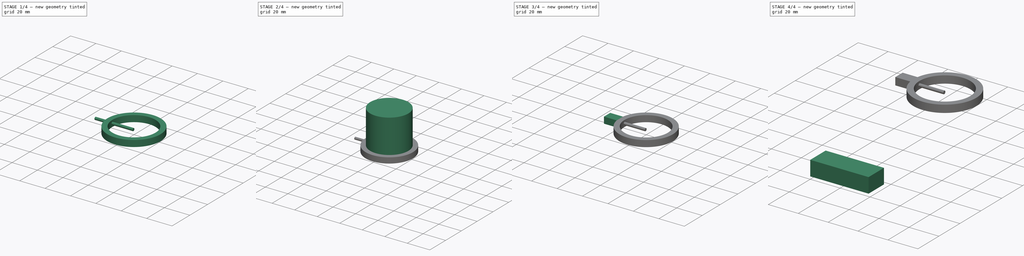
[diagram: build sequence overview — one tinted view per stage of 4, left to right]
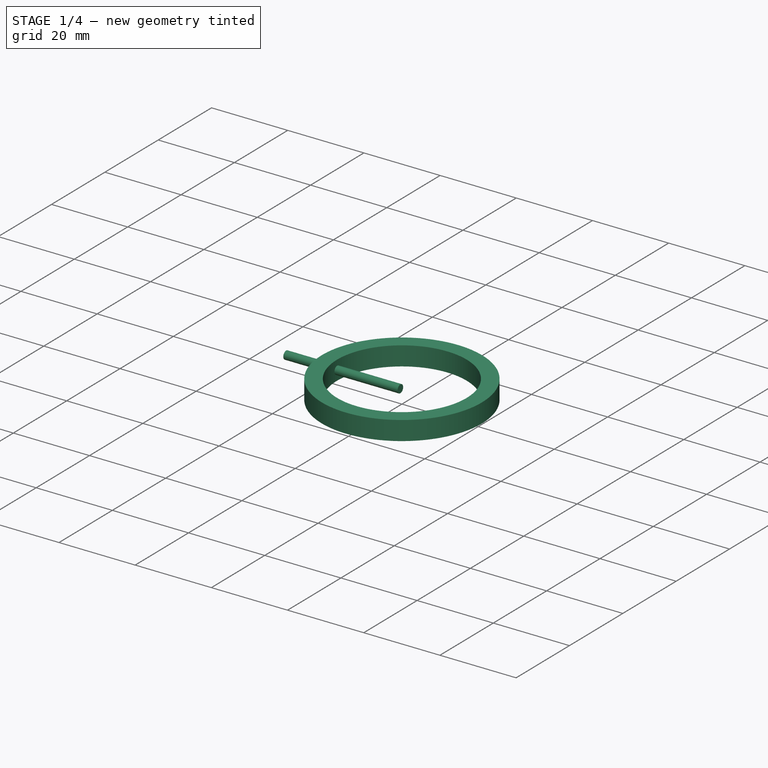
[diagram: stage 1 of 4 — iso view after this stage's code; geometry added in this stage tinted green]
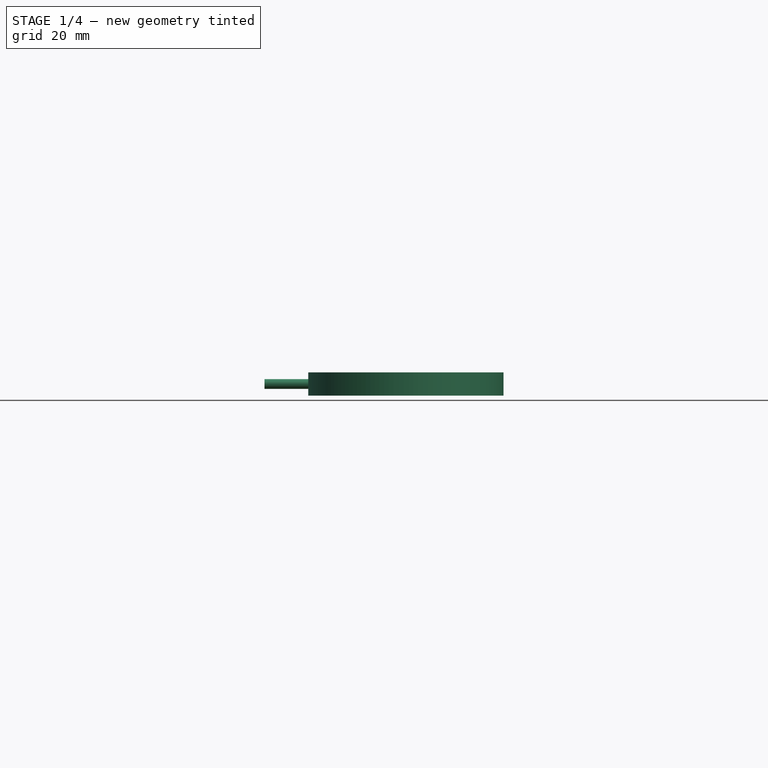
[diagram: stage 1 of 4 — front view after this stage's code; geometry added in this stage tinted green]
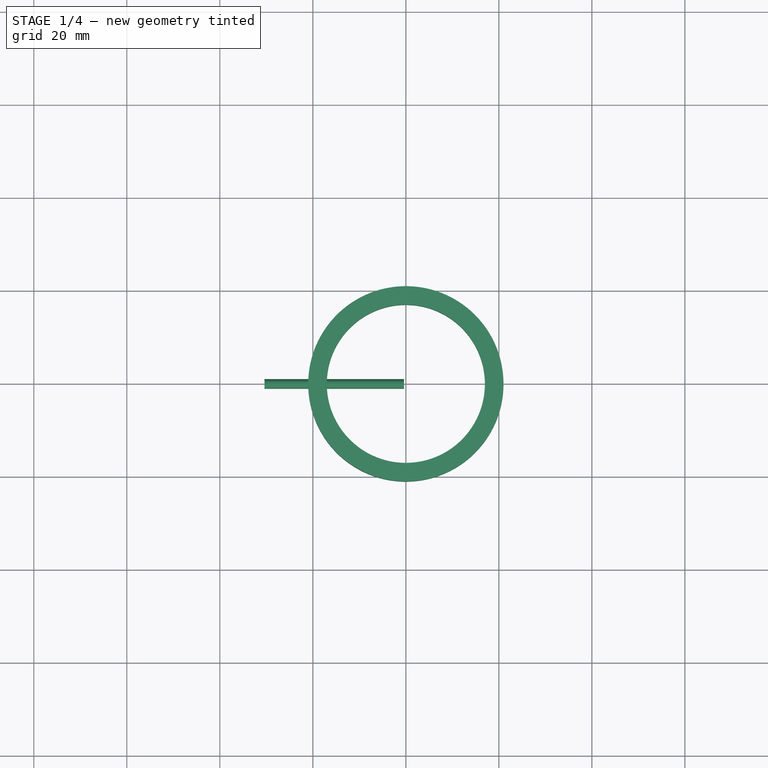
[diagram: stage 1 of 4 — top view after this stage's code; geometry added in this stage tinted green]
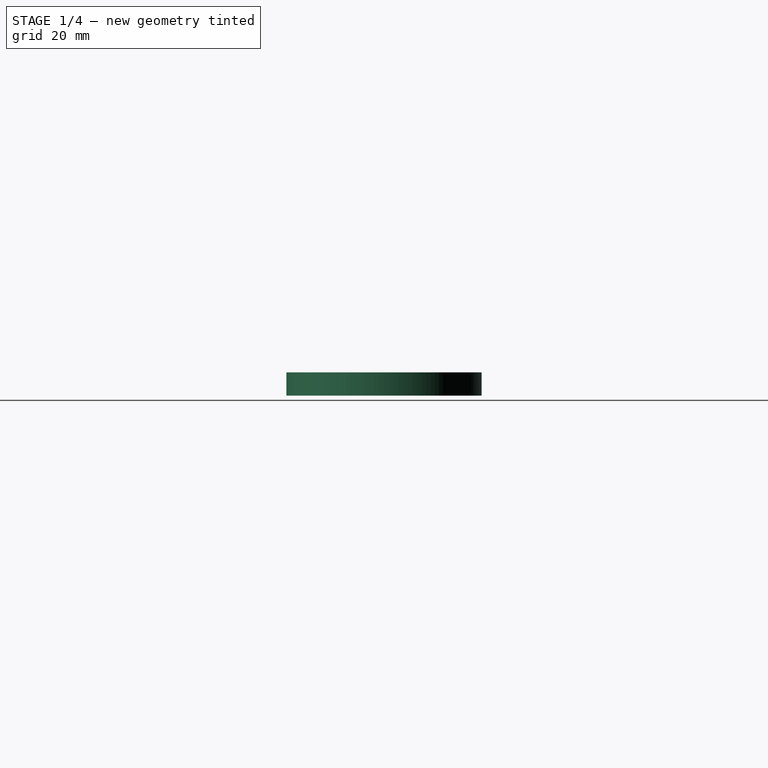
[diagram: stage 1 of 4 — right view after this stage's code; geometry added in this stage tinted green]
FCSTD DOCUMENT  (FreeCAD 0.19R24291 (Git))
Label: azimut_mount
License: All rights reserved
LicenseURL: http://en.wikipedia.org/wiki/All_rights_reserved
objects: Sketcher::SketchObject×10, Part::Extrusion×9, Part::Cut×3, PartDesign::ShapeBinder×3, Part::FeaturePython×1, App::Part×1, PartDesign::Body×1
note: 27 computed .brp shape members not serialized (recipe doc carries the construction recipe); baked Part::Feature solids carry a one-line shape summary decoded from their .brp

FEATURE [Part::FeaturePython] involutegear  # WARN: FeaturePython — macro-defined, semantics opaque (R4)
  AttacherType = Attacher::AttachEngine3D
  Placement = pos=(0,0,30) rot=(0,0,1;0rad)
  backlash = 0
  beta = 0
  clearance = 0.25
  da = 82
  df = 77.5
  double_helix = false
  dw = 80
  head = 0
  height = 5
  module = 1
  numpoints = 6
  pressure_angle = 20
  properties_from_tool = false
  reversed_backlash = false
  shift = 0
  simple = false
  teeth = 80
  transverse_pitch = 3.14159
  undercut = false
  version = 0.0.3
FEATURE [App::Part] Part
  Group = -> [involutegear]
  Origin = -> Origin001
FEATURE [Sketcher::SketchObject] Sketch003
  FullyConstrained = true
  MapMode = 5
  Placement = pos=(0,0,30) rot=(1,0,0;3.14159rad)
  Support = -> [involutegear]
  sketch-geometry (2):
    g0: Circle CenterX=0 CenterY=0 CenterZ=0 NormalX=0 NormalY=0 NormalZ=1 AngleXU=0 Radius=17
    g1: Circle CenterX=0 CenterY=0 CenterZ=0 NormalX=0 NormalY=0 NormalZ=1 AngleXU=0 Radius=21
  constraints (4):
    c: Radius(g0) = 17
    c: Coincident(g0,g-1)
    c: Coincident(g1,g0)
    c: Radius(g1) = 21
FEATURE [Part::Extrusion] Extrude003
  Base = -> Sketch003
  Dir = (0,0,-1)
  DirMode = 2
  FaceMakerClass = Part::FaceMakerBullseye
  LengthFwd = 5
  LengthRev = 0
  Solid = true
  Symmetric = false
FEATURE [Part::Extrusion] Extrude008
  Base = -> Sketch007
  Dir = (-1,0,0)
  DirMode = 2
  FaceMakerClass = Part::FaceMakerBullseye
  LengthFwd = 30
  LengthRev = 0
  Reversed = true
  Solid = true
  Symmetric = false
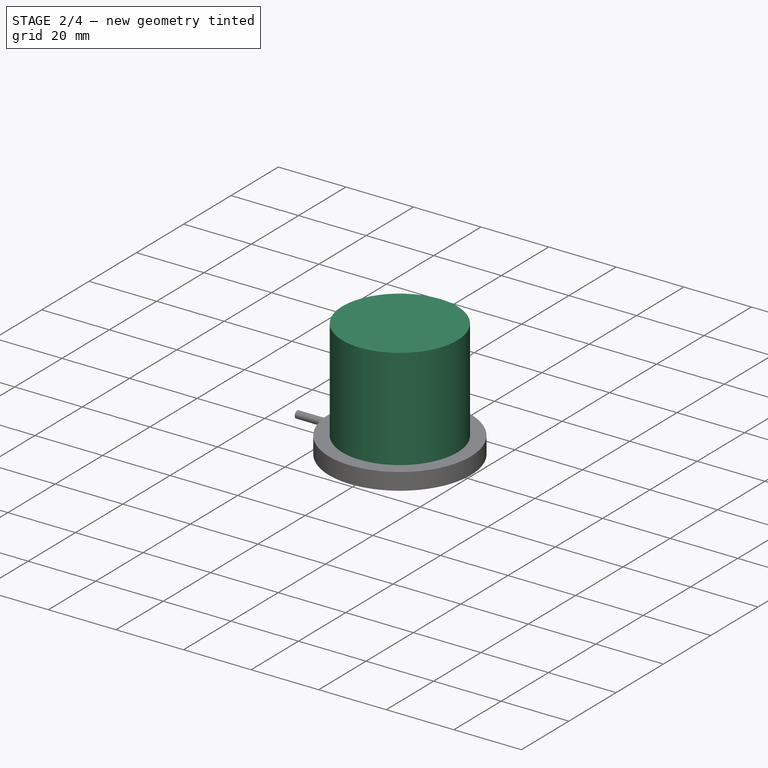
[diagram: stage 2 of 4 — iso view after this stage's code; geometry added in this stage tinted green]
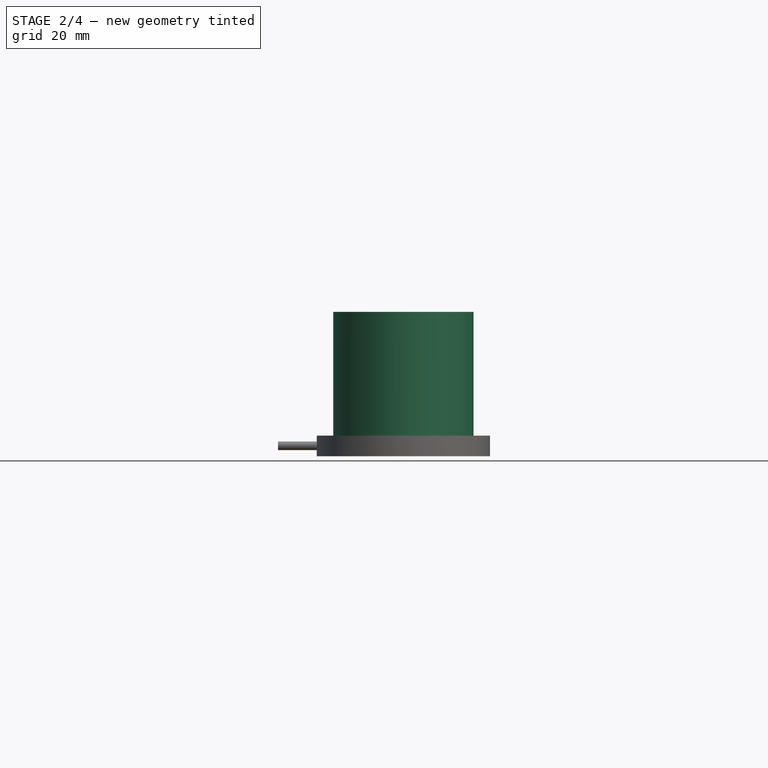
[diagram: stage 2 of 4 — front view after this stage's code; geometry added in this stage tinted green]
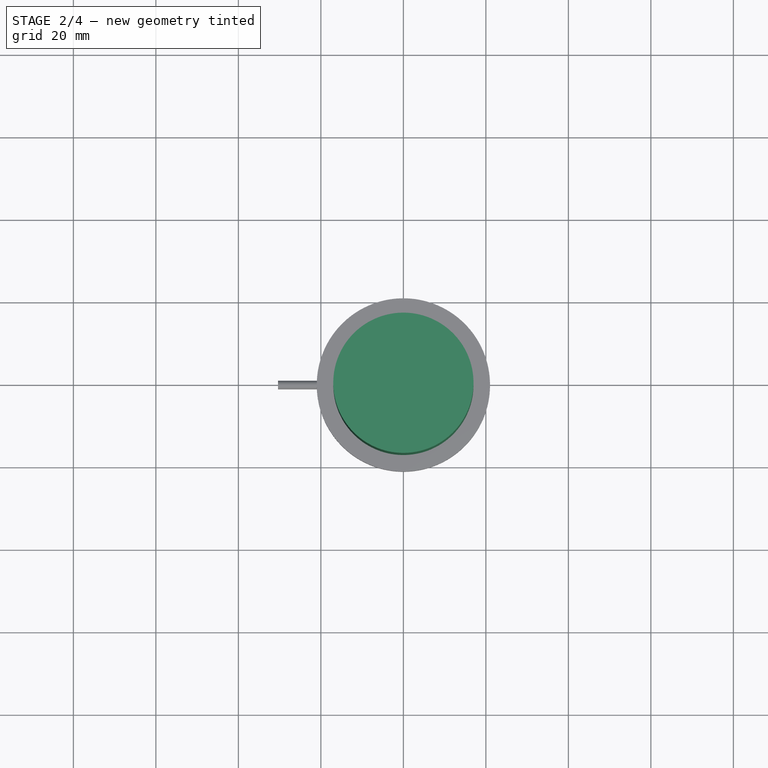
[diagram: stage 2 of 4 — top view after this stage's code; geometry added in this stage tinted green]
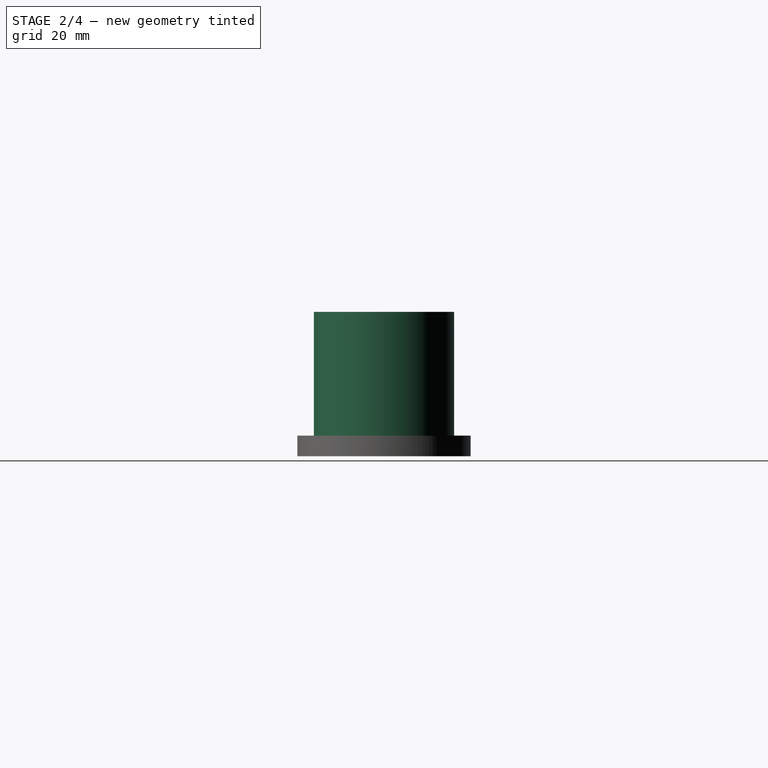
[diagram: stage 2 of 4 — right view after this stage's code; geometry added in this stage tinted green]
FEATURE [Sketcher::SketchObject] Sketch004
  FullyConstrained = true
  MapMode = 2
  Placement = pos=(0,0,30) rot=(0,0,1;0rad)
  Support = -> [involutegear]
  sketch-geometry (1):
    g0: Circle CenterX=0 CenterY=0 CenterZ=0 NormalX=0 NormalY=0 NormalZ=1 AngleXU=0 Radius=17
  constraints (2):
    c: Coincident(g0,g-1)
    c: Radius(g0) = 17
FEATURE [Part::Extrusion] Extrude004
  Base = -> Sketch004
  Dir = (0,0,1)
  DirMode = 2
  FaceMakerClass = Part::FaceMakerBullseye
  LengthFwd = 30
  LengthRev = 0
  Solid = true
  Symmetric = false
FEATURE [Part::Extrusion] Extrude009
  Base = -> Sketch007
  Dir = (-1,0,0)
  DirMode = 2
  FaceMakerClass = Part::FaceMakerBullseye
  LengthFwd = 30
  LengthRev = 0
  Reversed = true
  Solid = true
  Symmetric = false
FEATURE [Part::Cut] Cut002
  Base = -> Extrude003
  Tool = -> Extrude008
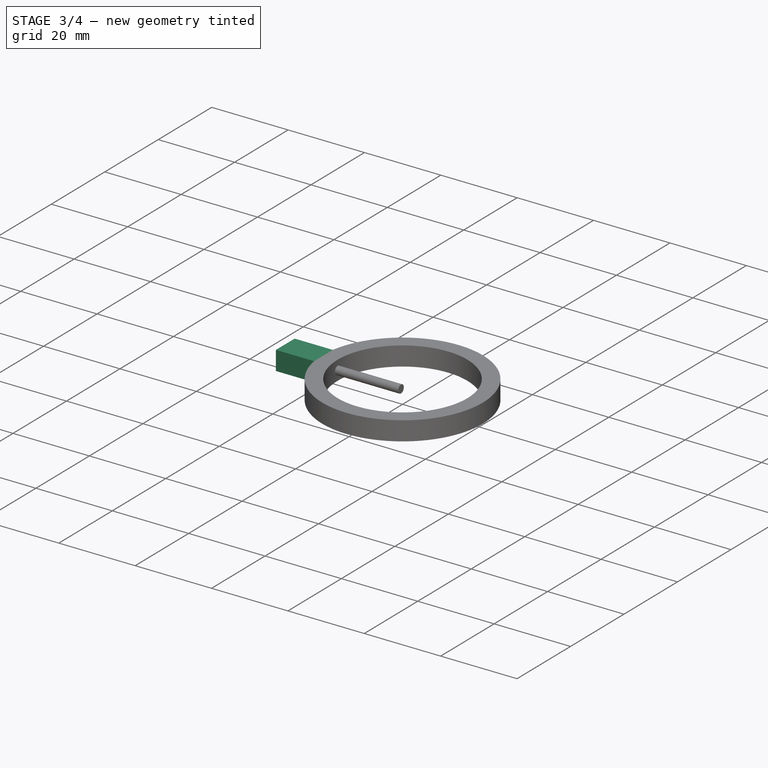
[diagram: stage 3 of 4 — iso view after this stage's code; geometry added in this stage tinted green]
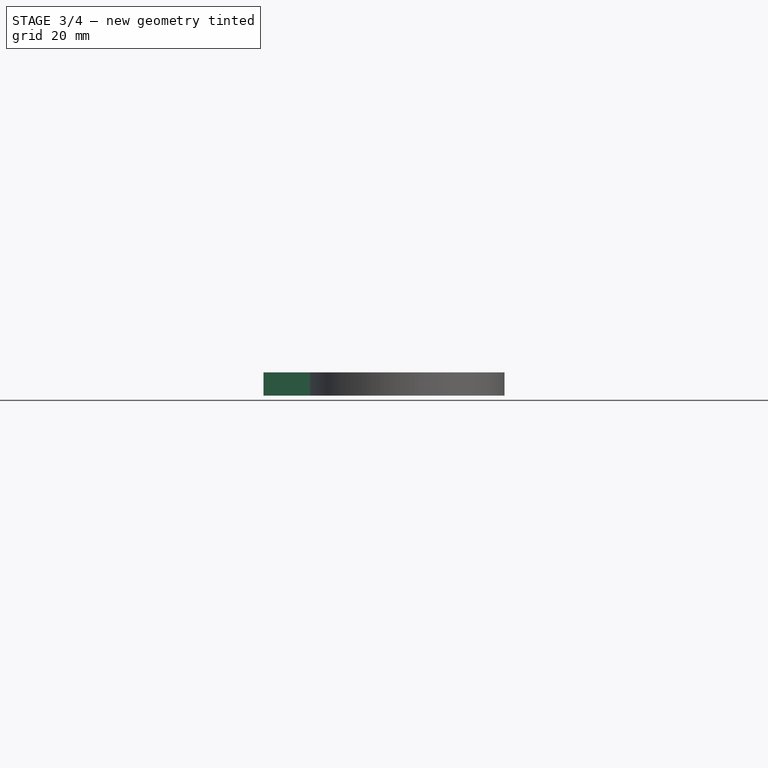
[diagram: stage 3 of 4 — front view after this stage's code; geometry added in this stage tinted green]
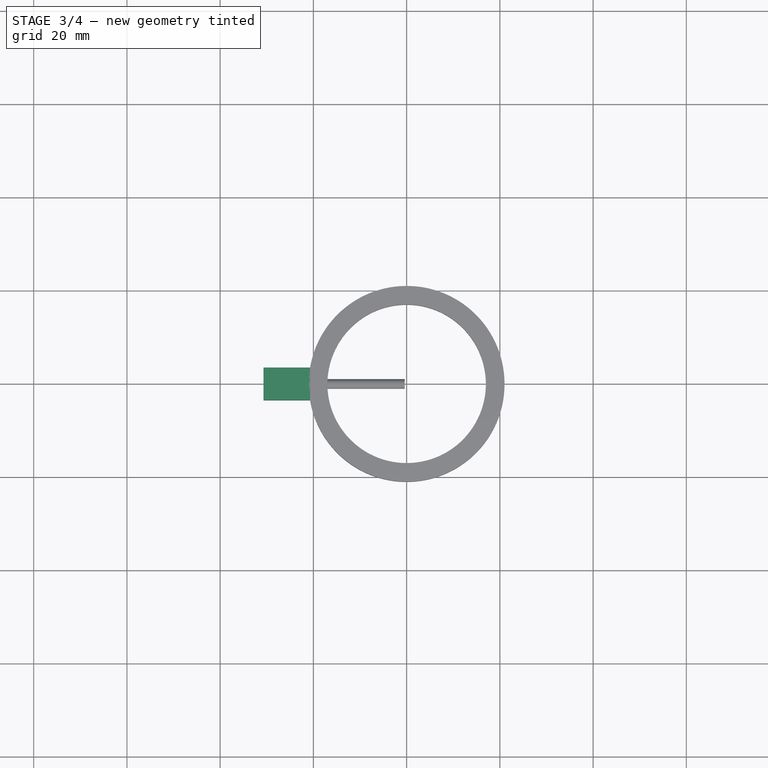
[diagram: stage 3 of 4 — top view after this stage's code; geometry added in this stage tinted green]
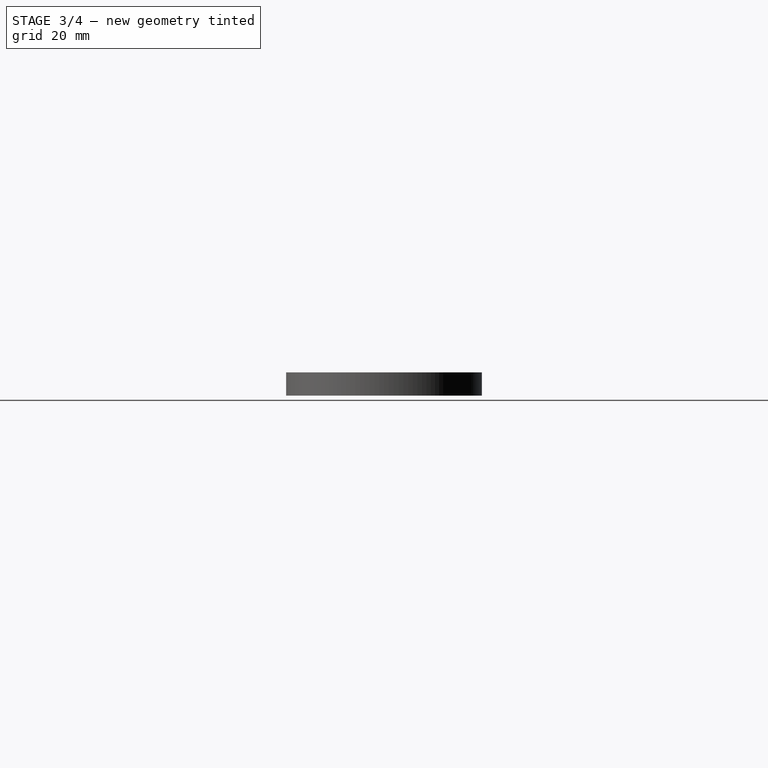
[diagram: stage 3 of 4 — right view after this stage's code; geometry added in this stage tinted green]
FEATURE [Part::Cut] Cut  label="Ozubene_kolo_80"
  Base = -> involutegear
  Tool = -> Extrude004
FEATURE [PartDesign::ShapeBinder] CopyCut
  TraceSupport = false
FEATURE [Sketcher::SketchObject] Sketch005
  FullyConstrained = false
  MapMode = 5
  Placement = pos=(0,0,30) rot=(1,0,0;3.14159rad)
  Support = -> [CopyCut]
  sketch-geometry (4):
    g0: LineSegment StartX=-26.3839 StartY=4.65916 StartZ=0 EndX=-20.0299 EndY=4.65916 EndZ=0
    g1: LineSegment StartX=-20.0299 StartY=4.65916 StartZ=0 EndX=-20.0299 EndY=-4.29367 EndZ=0
    g2: LineSegment StartX=-20.0299 StartY=-4.29367 StartZ=0 EndX=-26.3839 EndY=-4.29367 EndZ=0
    g3: LineSegment StartX=-26.3839 StartY=-4.29367 StartZ=0 EndX=-26.3839 EndY=4.65916 EndZ=0
  constraints (8):
    c: Coincident(g0,g1)
    c: Coincident(g1,g2)
    c: Coincident(g2,g3)
    c: Coincident(g3,g0)
    c: Horizontal(g0)
    c: Horizontal(g2)
    c: Vertical(g1)
    c: Vertical(g3)
FEATURE [PartDesign::ShapeBinder] CopyCut001
  TraceSupport = false
FEATURE [Sketcher::SketchObject] Sketch006
  FullyConstrained = true
  MapMode = 5
  Placement = pos=(0,0,30) rot=(1,0,0;3.14159rad)
  Support = -> [CopyCut001]
  sketch-geometry (5):
    g0: LineSegment StartX=-30.3961 StartY=5 StartZ=0 EndX=-20.3961 EndY=5 EndZ=0
    g1: LineSegment StartX=-20.3961 StartY=5 StartZ=0 EndX=-20.3961 EndY=-5 EndZ=0
    g2: LineSegment StartX=-20.3961 StartY=-5 StartZ=0 EndX=-30.3961 EndY=-5 EndZ=0
    g3: LineSegment StartX=-30.3961 StartY=-5 StartZ=0 EndX=-30.3961 EndY=5 EndZ=0
    g4: Circle CenterX=0 CenterY=0 CenterZ=0 NormalX=0 NormalY=0 NormalZ=1 AngleXU=0 Radius=21
  constraints (12):
    c: Coincident(g0,g1)
    c: Coincident(g1,g2)
    c: Coincident(g2,g3)
    c: Coincident(g3,g0)
    c: Horizontal(g0)
    c: Coincident(g4,g-1)
    c: PointOnObject(g0,g4)
    c: Symmetric(g0,g2,g-1)
    c: Symmetric(g1,g0,g-1)
    c: DistanceY(g3,g3) = 10
    c: DistanceX(g0,g0) = 10
    c: Radius(g4) = 21
FEATURE [Sketcher::SketchObject] Sketch007
  FullyConstrained = true
  MapMode = 5
  Placement = pos=(-30.3961,0,0) rot=(0.57735,-0.57735,-0.57735;2.0944rad)
  sketch-geometry (1):
    g0: Circle CenterX=0 CenterY=27.5122 CenterZ=0 NormalX=0 NormalY=0 NormalZ=1 AngleXU=0 Radius=1.05
  constraints (3):
    c: Radius(g0) = 1.05
    c: PointOnObject(g0,g-2)
    c: DistanceY(g0) = 27.5122
FEATURE [PartDesign::ShapeBinder] CopyCut002
  TraceSupport = false
FEATURE [Sketcher::SketchObject] Sketch008  label="matice_vybrani"
  FullyConstrained = true
  MapMode = 5
  Placement = pos=(-20.3961,0,0) rot=(0.57735,0.57735,0.57735;2.0944rad)
  Support = -> [CopyCut002]
  sketch-geometry (7):
    g0: LineSegment StartX=-1.525 StartY=22.4213 StartZ=0 EndX=1.525 EndY=22.4213 EndZ=0
    g1: LineSegment StartX=1.525 StartY=22.4213 StartZ=0 EndX=3.05 EndY=25.0626 EndZ=0
    g2: LineSegment StartX=3.05 StartY=25.0626 StartZ=0 EndX=1.525 EndY=27.704 EndZ=0
    g3: LineSegment StartX=1.525 StartY=27.704 StartZ=0 EndX=-1.525 EndY=27.704 EndZ=0
    g4: LineSegment StartX=-1.525 StartY=27.704 StartZ=0 EndX=-3.05 EndY=25.0626 EndZ=0
    g5: LineSegment StartX=-3.05 StartY=25.0626 StartZ=0 EndX=-1.525 EndY=22.4213 EndZ=0
    g6: Circle CenterX=1e-16 CenterY=25.0626 CenterZ=0 NormalX=0 NormalY=0 NormalZ=1 AngleXU=0 Radius=3.05
  constraints (16):
    c: Coincident(g0,g1)
    c: Coincident(g1,g2)
    c: Coincident(g2,g3)
    c: Coincident(g3,g4)
    c: Coincident(g4,g5)
    c: Coincident(g5,g0)
    c: Equal(g0, g1-g5) x5
    c: PointOnObject(g0,g6)
    c: PointOnObject(g1,g6)
    c: PointOnObject(g2,g6)
    c: PointOnObject(g3,g6)
    c: PointOnObject(g4,g6)
    c: PointOnObject(g5,g6)
    c: Distance(g4) = 3.05
    c: Symmetric(g3,g2,g-2)
    c: DistanceY(g6) = 25.0626
FEATURE [PartDesign::Body] Body
  Group = -> [Sketch,CopyCut,Sketch005,CopyCut001,Sketch006,CopyCut002,Sketch008]
  Origin = -> Origin
FEATURE [Part::Extrusion] Extrude006
  Base = -> Sketch007
  Dir = (-1,0,0)
  DirMode = 0
  FaceMakerClass = Part::FaceMakerBullseye
  LengthFwd = 20
  LengthRev = 0
  Placement = pos=(-1,0,0) rot=(0,0,1;0rad)
  Reversed = true
  Solid = true
  Symmetric = false
FEATURE [Sketcher::SketchObject] Sketch009
  ExternalGeometry = -> [Sketch003]
  FullyConstrained = true
  MapMode = 5
  Placement = pos=(0,0,30) rot=(1,0,0;3.14159rad)
  Support = -> [Cut]
  sketch-geometry (4):
    g0: LineSegment StartX=-20.7063 StartY=-3.5 StartZ=0 EndX=-30.7063 EndY=-3.5 EndZ=0
    g1: LineSegment StartX=-30.7063 StartY=-3.5 StartZ=0 EndX=-30.7063 EndY=3.5 EndZ=0
    g2: LineSegment StartX=-30.7063 StartY=3.5 StartZ=0 EndX=-20.7063 EndY=3.5 EndZ=0
    g3: LineSegment StartX=-20.7063 StartY=3.5 StartZ=0 EndX=-20.7063 EndY=-3.5 EndZ=0
  constraints (11):
    c: Coincident(g0,g1)
    c: Coincident(g1,g2)
    c: Coincident(g2,g3)
    c: Coincident(g3,g0)
    c: Horizontal(g0)
    c: Horizontal(g2)
    c: Vertical(g3)
    c: Symmetric(g1,g0,g-1)
    c: DistanceX(g2,g2) = 10
    c: DistanceY(g1,g1) = 7
    c: PointOnObject(g2,g-3)
FEATURE [Part::Extrusion] Extrude007
  Base = -> Sketch009
  Dir = (0,0,-1)
  DirMode = 2
  FaceMakerClass = Part::FaceMakerBullseye
  LengthFwd = 5
  LengthRev = 0
  Solid = true
  Symmetric = false
FEATURE [Part::Cut] Cut001
  Base = -> Extrude007
  Tool = -> Extrude006
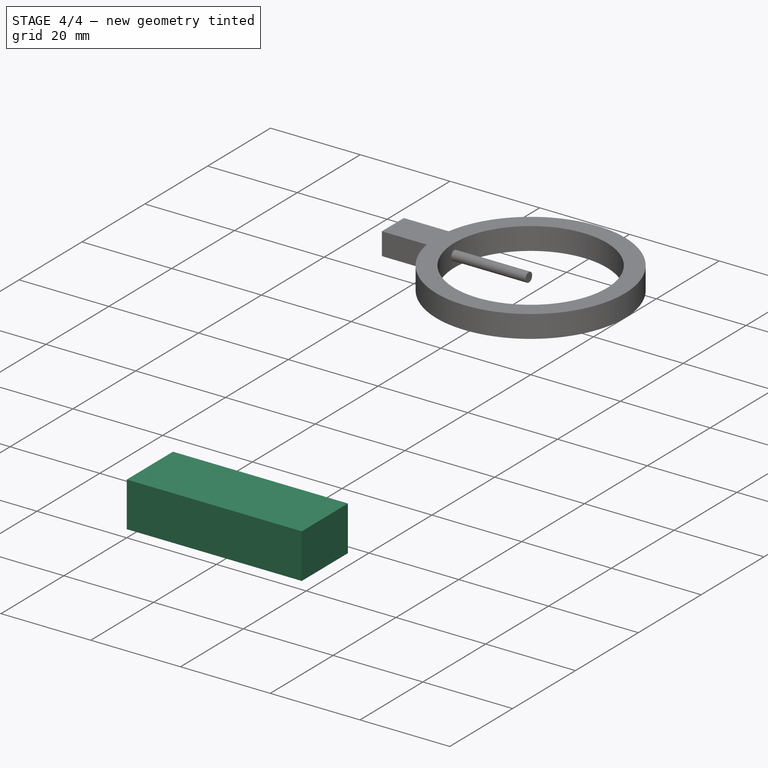
[diagram: stage 4 of 4 — iso view after this stage's code; geometry added in this stage tinted green]
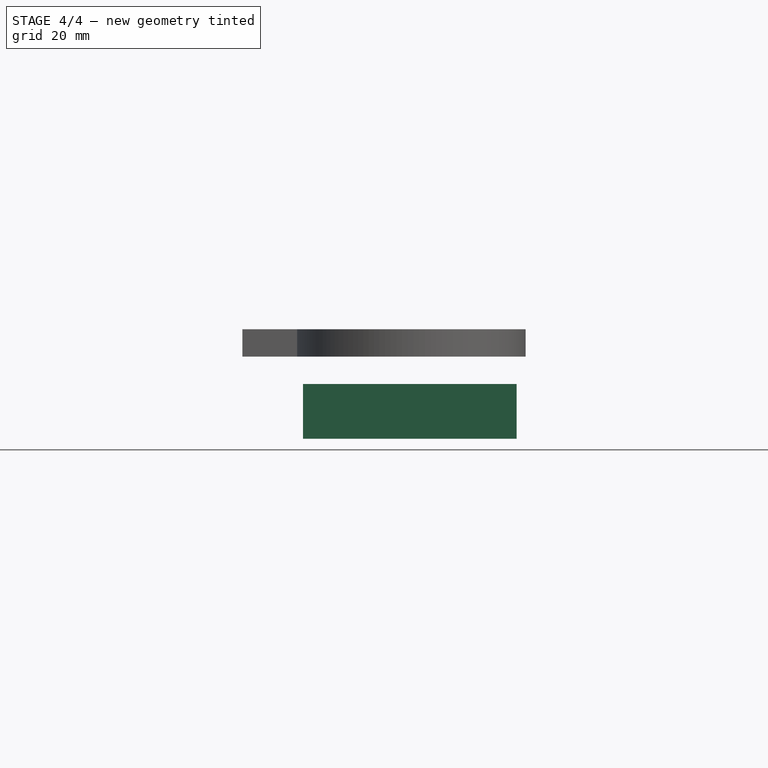
[diagram: stage 4 of 4 — front view after this stage's code; geometry added in this stage tinted green]
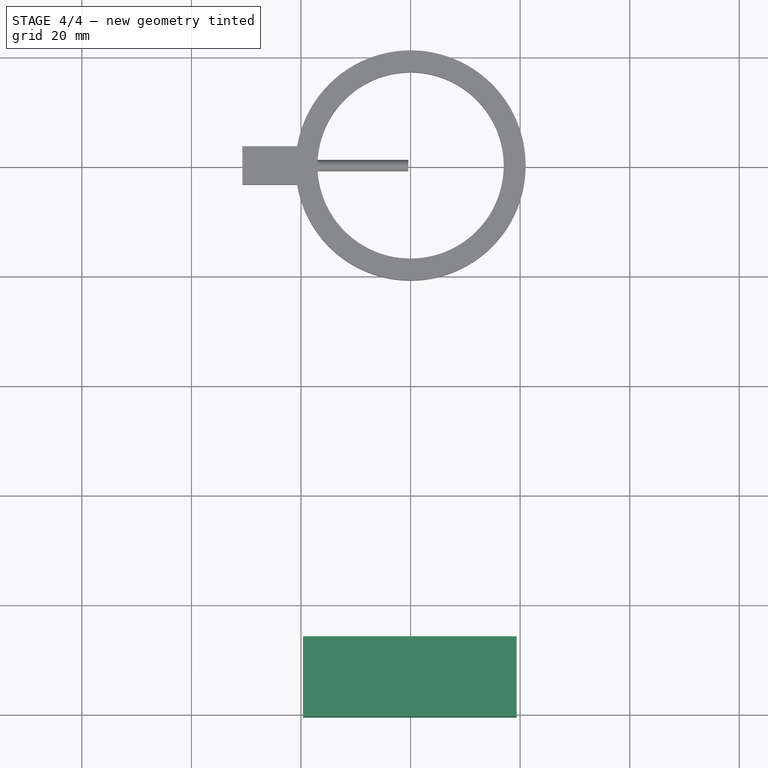
[diagram: stage 4 of 4 — top view after this stage's code; geometry added in this stage tinted green]
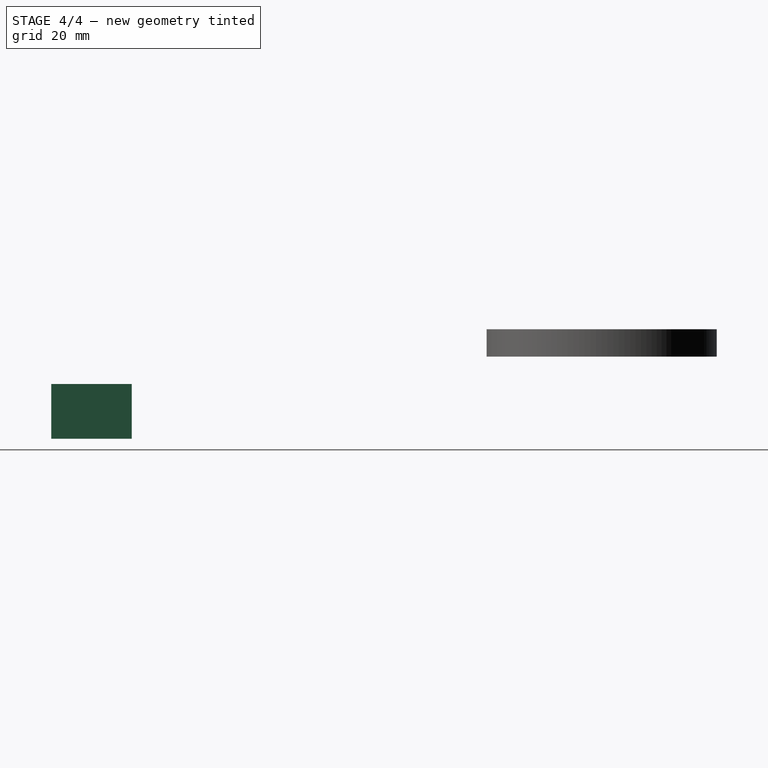
[diagram: stage 4 of 4 — right view after this stage's code; geometry added in this stage tinted green]
FEATURE [Sketcher::SketchObject] Sketch
  FullyConstrained = true
  MapMode = 5
  Support = -> [XY_Plane]
  sketch-geometry (6):
    g0: ArcOfCircle CenterX=0 CenterY=0 CenterZ=0 NormalX=0 NormalY=0 NormalZ=1 AngleXU=0 Radius=15.5 StartAngle=3.47005 EndAngle=9.09632
    g1: Circle CenterX=0 CenterY=0 CenterZ=0 NormalX=0 NormalY=0 NormalZ=1 AngleXU=0 Radius=20
    g2: LineSegment StartX=-17.6714 StartY=0 StartZ=0 EndX=-17.6714 EndY=5 EndZ=0
    g3: LineSegment StartX=-17.6714 StartY=5 StartZ=0 EndX=-14.6714 EndY=5 EndZ=0
    g4: LineSegment StartX=-17.6714 StartY=-5 StartZ=0 EndX=-14.6714 EndY=-5 EndZ=0
    g5: LineSegment StartX=-17.6714 StartY=0 StartZ=0 EndX=-17.6714 EndY=-5 EndZ=0
  constraints (17):
    c: Coincident(g0,g-1)
    c: Radius(g0) = 15.5
    c: Coincident(g1,g0)
    c: Radius(g1) = 20
    c: Coincident(g2,g3)
    c: Horizontal(g3)
    c: Vertical(g2)
    c: DistanceY(g2,g2) = 5
    c: DistanceX(g3,g3) = 3
    c: Coincident(g5,g4)
    c: Horizontal(g4)
    c: Vertical(g5)
    c: DistanceY(g5,g5) = 5
    c: DistanceX(g4,g4) = 3
    c: Coincident(g5,g2)
    c: Coincident(g0,g4)
    c: Coincident(g0,g3)
FEATURE [Part::Extrusion] Extrude  label="Extr_objimka_osa"
  Base = -> Sketch
  Dir = (0,0,1)
  DirMode = 2
  FaceMakerClass = Part::FaceMakerBullseye
  LengthFwd = 10
  LengthRev = 0
  Solid = true
  Symmetric = false
FEATURE [Sketcher::SketchObject] Sketch001
  ExternalGeometry = -> [Extrude]
  FullyConstrained = false
  MapMode = 5
  Placement = pos=(0,0,0) rot=(1,0,0;3.14159rad)
  Support = -> [Extrude]
  sketch-geometry (4):
    g0: LineSegment StartX=-20 StartY=0 StartZ=0 EndX=19.5677 EndY=0 EndZ=0
    g1: LineSegment StartX=19.5677 StartY=0 StartZ=0 EndX=19.5677 EndY=100.22 EndZ=0
    g2: LineSegment StartX=19.5677 StartY=100.22 StartZ=0 EndX=-20 EndY=100.22 EndZ=0
    g3: LineSegment StartX=-20 StartY=100.22 StartZ=0 EndX=-20 EndY=0 EndZ=0
  constraints (9):
    c: Coincident(g0,g1)
    c: Coincident(g1,g2)
    c: Coincident(g2,g3)
    c: Coincident(g3,g0)
    c: Horizontal(g0)
    c: Horizontal(g2)
    c: Vertical(g1)
    c: Vertical(g3)
    c: PointOnObject(g0,g-3)
FEATURE [Part::Extrusion] Extrude001
  Base = -> Sketch001
  Dir = (0,0,-1)
  DirMode = 2
  FaceMakerClass = Part::FaceMakerBullseye
  LengthFwd = 10
  LengthRev = 0
  Reversed = true
  Solid = true
  Symmetric = false
FEATURE [Sketcher::SketchObject] Sketch002
  FullyConstrained = false
  MapMode = 5
  Placement = pos=(0,0,10) rot=(0,0,1;0rad)
  Support = -> [Extrude001]
  sketch-geometry (4):
    g0: LineSegment StartX=-19.6435 StartY=-100.468 StartZ=0 EndX=19.3503 EndY=-100.468 EndZ=0
    g1: LineSegment StartX=19.3503 StartY=-100.468 StartZ=0 EndX=19.3503 EndY=-85.7852 EndZ=0
    g2: LineSegment StartX=19.3503 StartY=-85.7852 StartZ=0 EndX=-19.6435 EndY=-85.7852 EndZ=0
    g3: LineSegment StartX=-19.6435 StartY=-85.7852 StartZ=0 EndX=-19.6435 EndY=-100.468 EndZ=0
  constraints (8):
    c: Coincident(g0,g1)
    c: Coincident(g1,g2)
    c: Coincident(g2,g3)
    c: Coincident(g3,g0)
    c: Horizontal(g0)
    c: Horizontal(g2)
    c: Vertical(g1)
    c: Vertical(g3)
FEATURE [Part::Extrusion] Extrude002
  Base = -> Sketch002
  Dir = (0,0,1)
  DirMode = 2
  FaceMakerClass = Part::FaceMakerBullseye
  LengthFwd = 10
  LengthRev = 0
  Solid = true
  Symmetric = false
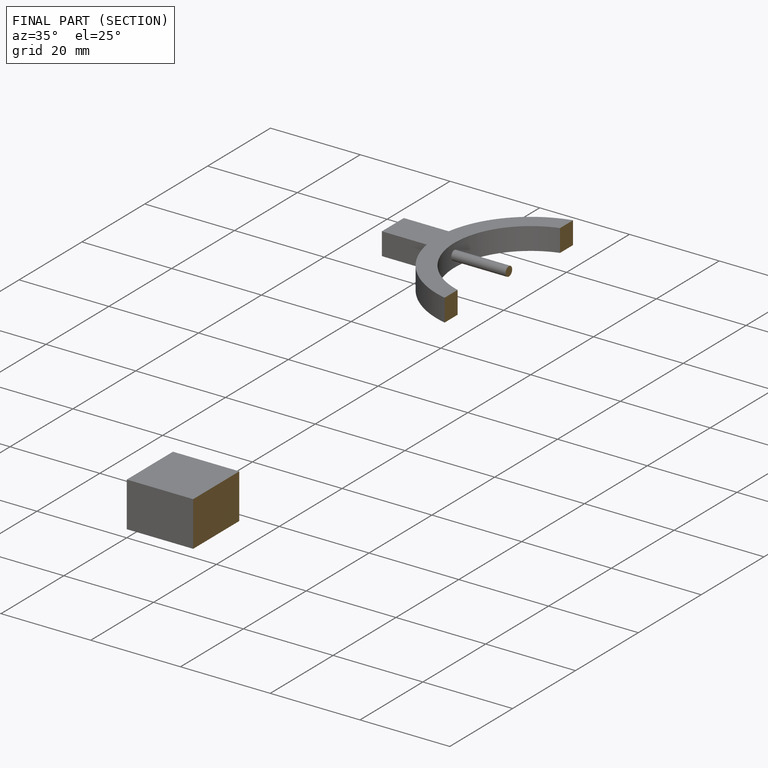
[diagram: finished part — half-section view (interior)]
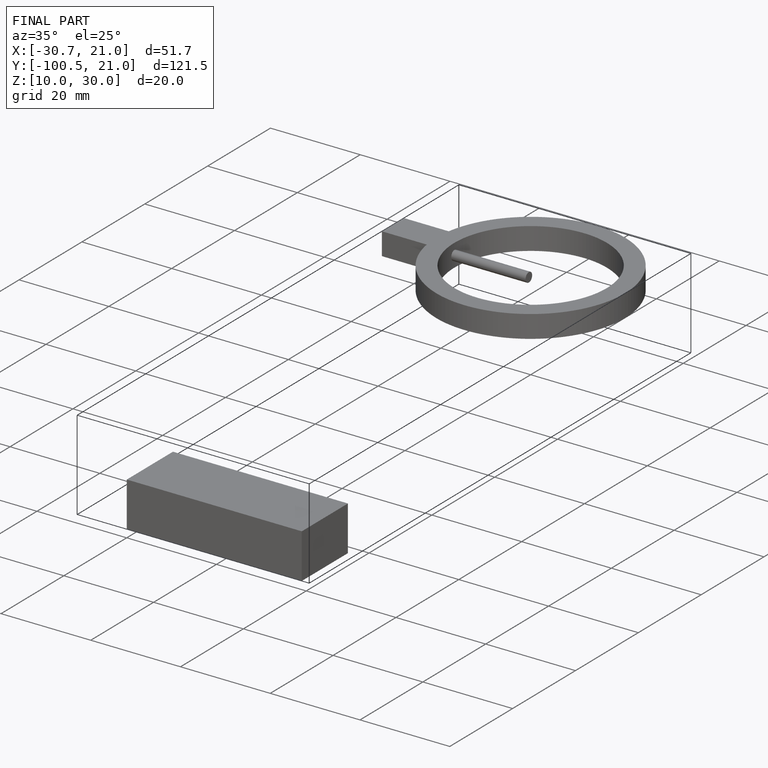
[diagram: finished part — iso view with bounding-box wireframe]
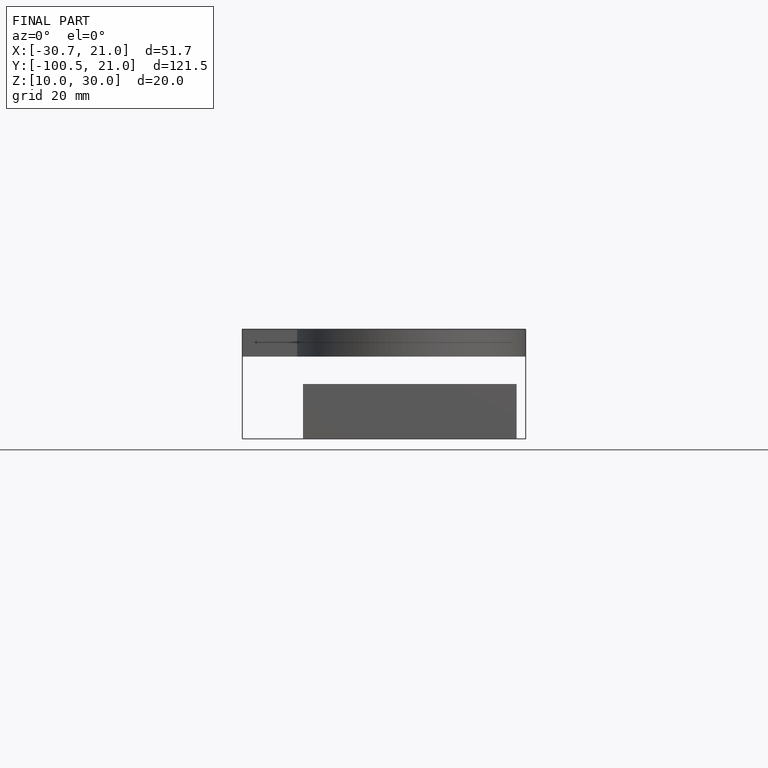
[diagram: finished part — front view with bounding-box wireframe]
